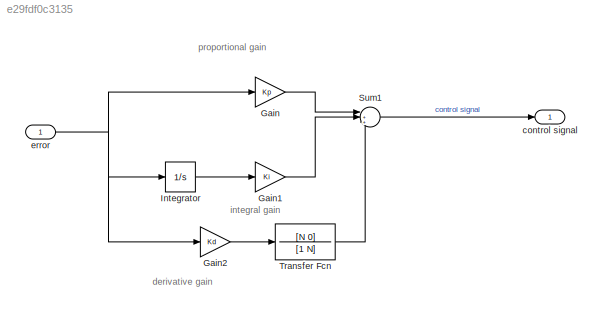
MODEL slx_e29fdf0c3135
KIND model
CONFIG AbsTol = auto
CONFIG EnableMultiTasking = off
CONFIG FixedStep = auto
CONFIG MaxStep = auto
CONFIG MinStep = auto
CONFIG RelTol = 1e-3
CONFIG SampleTimeConstraint = Unconstrained
CONFIG SolverName = VariableStepAuto
CONFIG StartTime = 0.0
CONFIG StopTime = 10.0
BLOCK [Gain] Gain
  Gain = Kp
BLOCK [Gain] Gain1
  Gain = Ki
BLOCK [Gain] Gain2
  Gain = Kd
BLOCK [Integrator] Integrator
  Ports = [1, 1]
BLOCK [Sum] Sum1
  Inputs = |+++
  Ports = [3, 1]
BLOCK [TransferFcn] Transfer Fcn
  Denominator = [1 N]
  Numerator = [N 0]
BLOCK [Outport] control signal
  OutDataTypeStr = double
  PortDimensions = 1
  SampleTime = 0
  SamplingMode = Sample based
  SignalType = real
BLOCK [Inport] error
  OutDataTypeStr = double
  PortDimensions = 1
  SampleTime = 0
  SamplingMode = Sample based
  SignalType = real
ANNOTATION (root): derivative gain
ANNOTATION (root): integral gain
ANNOTATION (root): proportional gain
LINE Gain1:1 -> Sum1:2
LINE Gain2:1 -> Transfer Fcn:1
LINE Gain:1 -> Sum1:1
LINE Integrator:1 -> Gain1:1
LINE Sum1:1 -> control signal:1
LINE Transfer Fcn:1 -> Sum1:3
NET error:1 -> Gain2:1, Gain:1, Integrator:1
note: NET lines group one-source signal fan-out (src -> all destinations, sorted); 1:1 wires keep LINE
